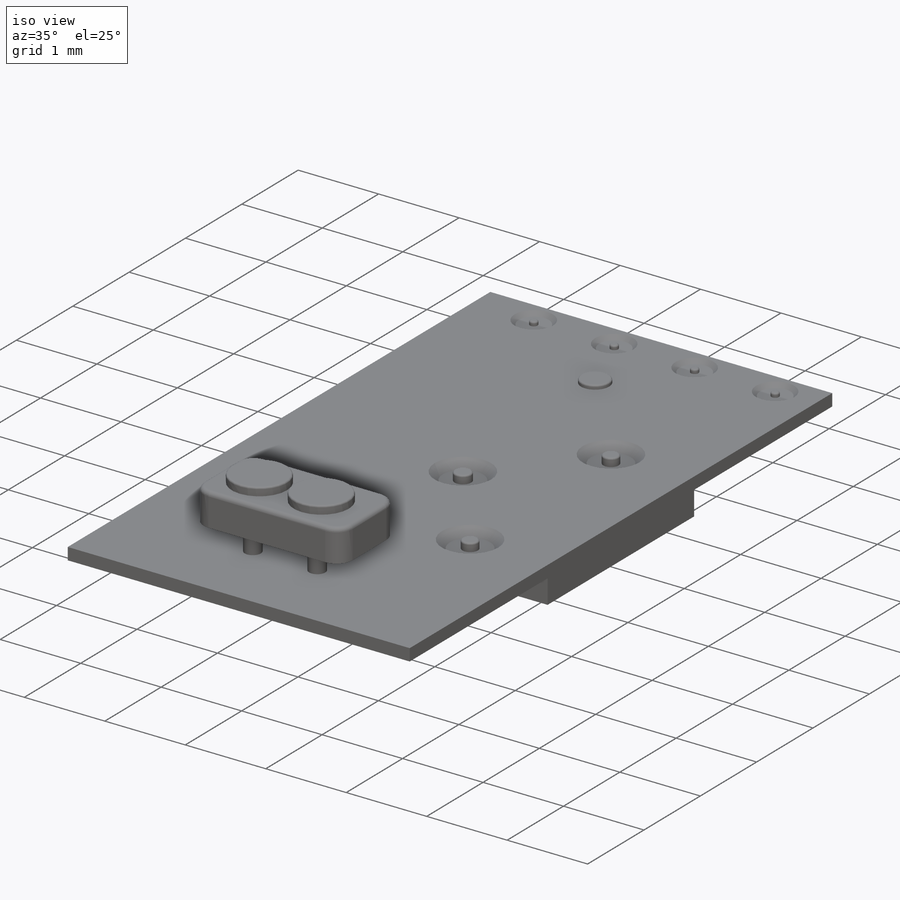
[diagram: iso view]
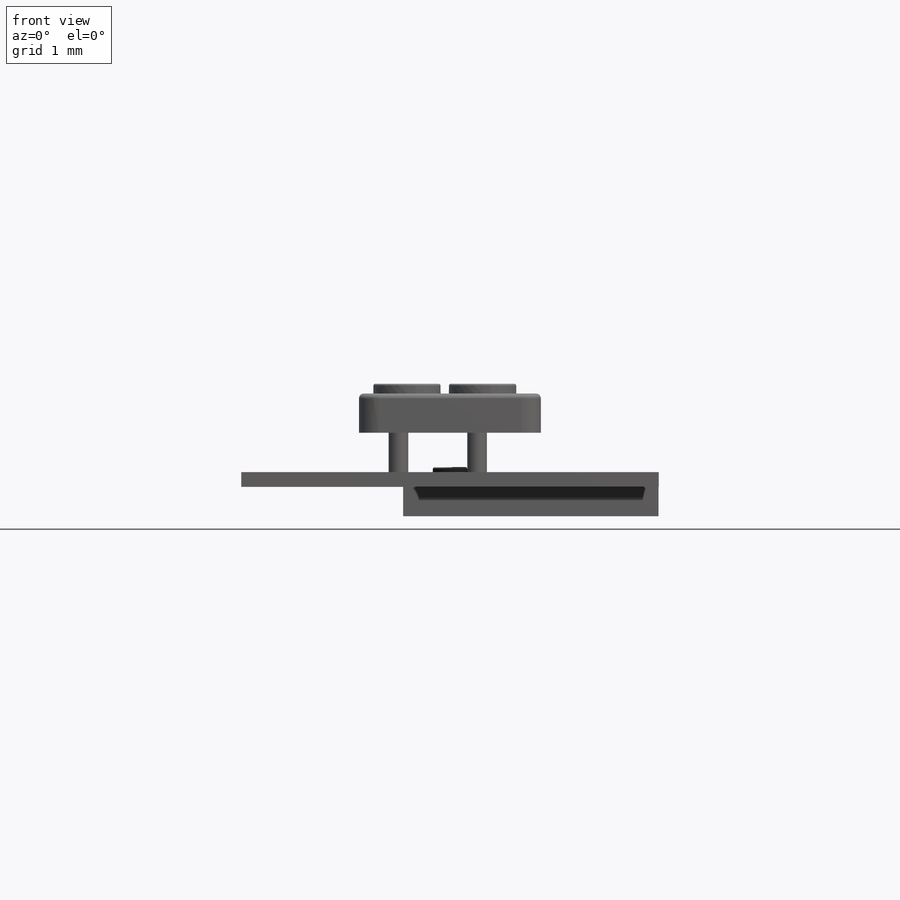
[diagram: front view]
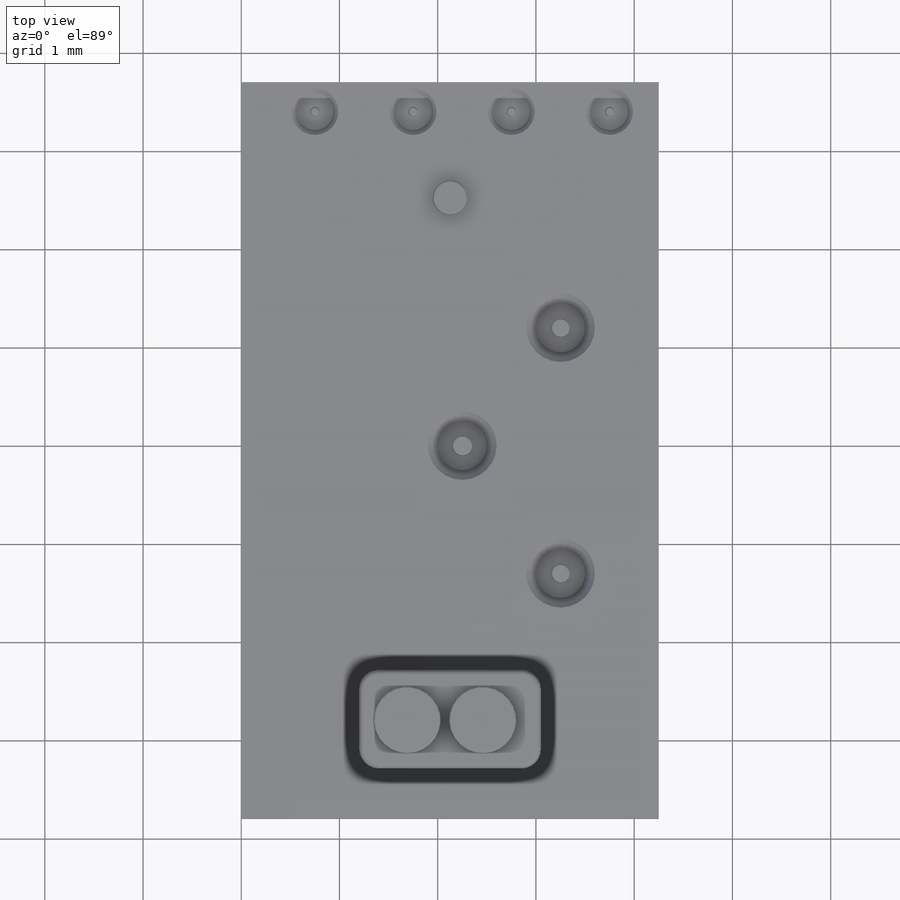
[diagram: top view]
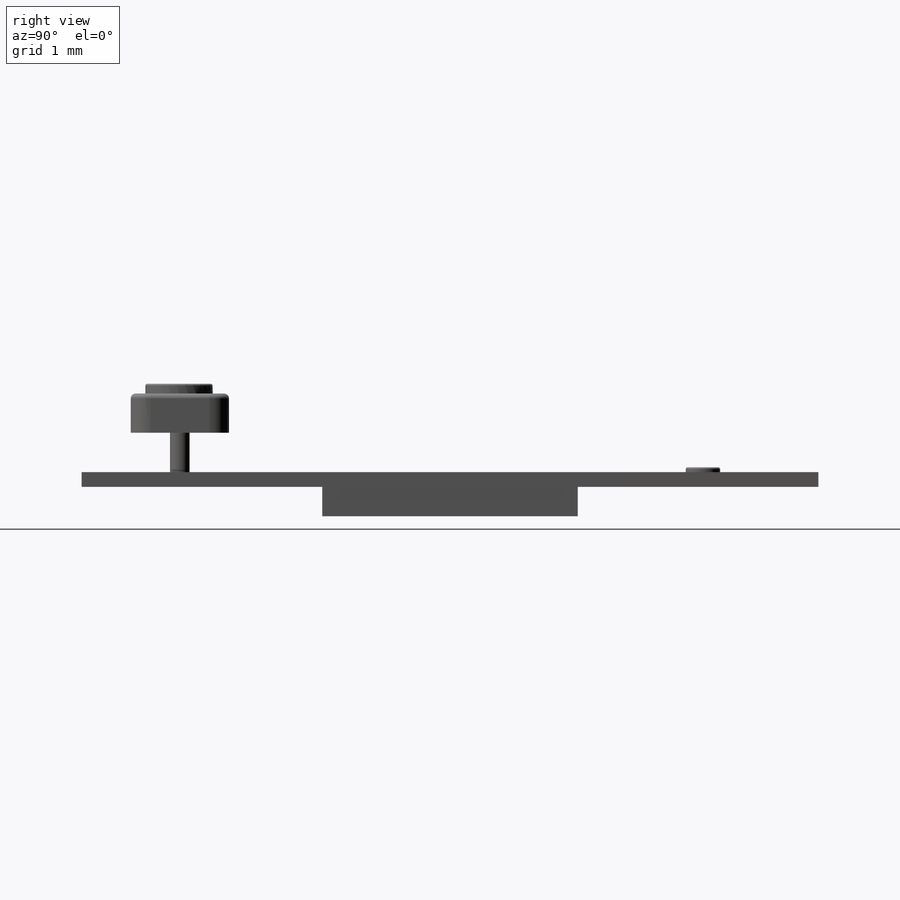
[diagram: right view]
SOLIDWORKS PART (.sldprt)
format: sldprt  version: not decoded by parser v0  size: 547,328 bytes
history: native  units: mm
features: sketch x14, extrude x8, fillet x7, cut_extrude x5, chamfer x3, pattern_linear x2, material x1 (+13 scaffold rows collapsed)
feature tree (53):
  scaffold x13  (default folders/planes/origin — collapsed)
  material  "Material <not specified>"
  sketch  "Sketch1"  dims[D1=4.25mm D2=7.5mm]
  extrude  "Boss-Extrude1"  Depth=0.15mm
  sketch  "Sketch2"  dims[c1.D2=~0.376331mm c1.D1=0.3mm c2.D2=0.5mm]
  cut_extrude  "Cut-Extrude5"  Depth=0.05mm
  pattern_linear  "LPattern1"  Count1=4 Count2=1 Spacing1=1mm Spacing2=10mm
  chamfer  "Chamfer1"  Distance=0.05mm Angle=45deg
  sketch  "Sketch3"  dims[D1=0.5mm]
  sketch  "Sketch4"  dims[D1=0.35mm]
  sketch  "Sketch5"
  extrude  "Boss-Extrude2"  Depth=0.05mm
  fillet  "Fillet2"  Radius=0.02mm
  pattern_linear  "LPattern11"  Count1=4 Count2=1 Spacing1=1mm Spacing2=50mm
  fillet  "Fillet3"  Radius=0.02mm
  extrude  "Boss-Extrude3"  Depth=0.05mm
  fillet  "Fillet4"  Radius=0.02mm
  sketch  "Sketch7"  dims[D1=0.2mm D2=0.2mm D3=0.8mm D4=1.6mm D5=1.0mm]
  extrude  "Boss-Extrude4"  Depth=0.5mm
  sketch  "Sketch15"  dims[c1.D1=1.8mm c1.D2=1.0mm c1.D3=1.2mm c1.D4=0.5mm c2.D1=~1.198212mm c2.D5=1.8mm]
  extrude  "Boss-Extrude6"  Depth=0.3mm
  sketch  "Sketch16"  dims[D1=~0.069153mm D2=~0.695981mm]
  extrude  "Boss-Extrude7"  Depth=0.1mm
  fillet  "Fillet5"  Radius=0.02mm
  sketch  "Sketch17"  dims[c1.D1=0.5mm c1.D2=0.5mm c1.D3=0.5mm c1.D4=0.5mm c1.D5=0.5mm c2.D4=1.0mm c2.D5=1.0mm c2.D6=2.0mm c2.D7=2.5mm c2.D8=2.5mm c2.D9=3.8mm]
  cut_extrude  "Cut-Extrude7"  Depth=0.1mm
  chamfer  "Chamfer2"  Distance=0.1mm Angle=45deg
  sketch  "Sketch18"  dims[D1=0.7mm]
  extrude  "Boss-Extrude8"  Depth=0.1mm
  fillet  "Fillet6"  Radius=0.02mm
  sketch  "Sketch19"  dims[c1.D1=~0.790874mm c1.D2=~0.638783mm c1.D5=0.5mm c1.D6=~0.638783mm c1.D7=0.5mm c1.D8=0.5mm c2.D1=2.85mm c2.D2=2.85mm c2.D3=2.0mm c2.D4=1.0mm c2.D6=1.0mm c2.D9=3.8mm]
  cut_extrude  "Cut-Extrude9"  Depth=0.01mm
  chamfer  "Chamfer3"  Distance=0.1mm Angle=45deg
  sketch  "Sketch20"  dims[c1.D4=0.7mm c1.D1=2.6mm c1.D2=2.6mm c1.D3=2.45mm c2.D4=~0.99783mm]
  extrude  "Boss-Extrude9"  Depth=0.3mm
  sketch  "Sketch21"  dims[c1.D1=~0.833155mm c1.D3=2.0mm c2.D1=1.32mm c2.D2=1.3mm]
  cut_extrude  "Cut-Extrude10"  Depth=0.05mm
  sketch  "Sketch22"
  cut_extrude  "Cut-Extrude11"  Depth=0.1mm
  fillet  "Fillet7"  Radius=0.2mm
  fillet  "Fillet9"  Radius=0.05mm
decode coverage: 37 of 39 modeling features carry decoded parameters
note: ~ marks probable driven/reference dimensions
note: suppression state not decoded; provenance and decode notes live in map.json
